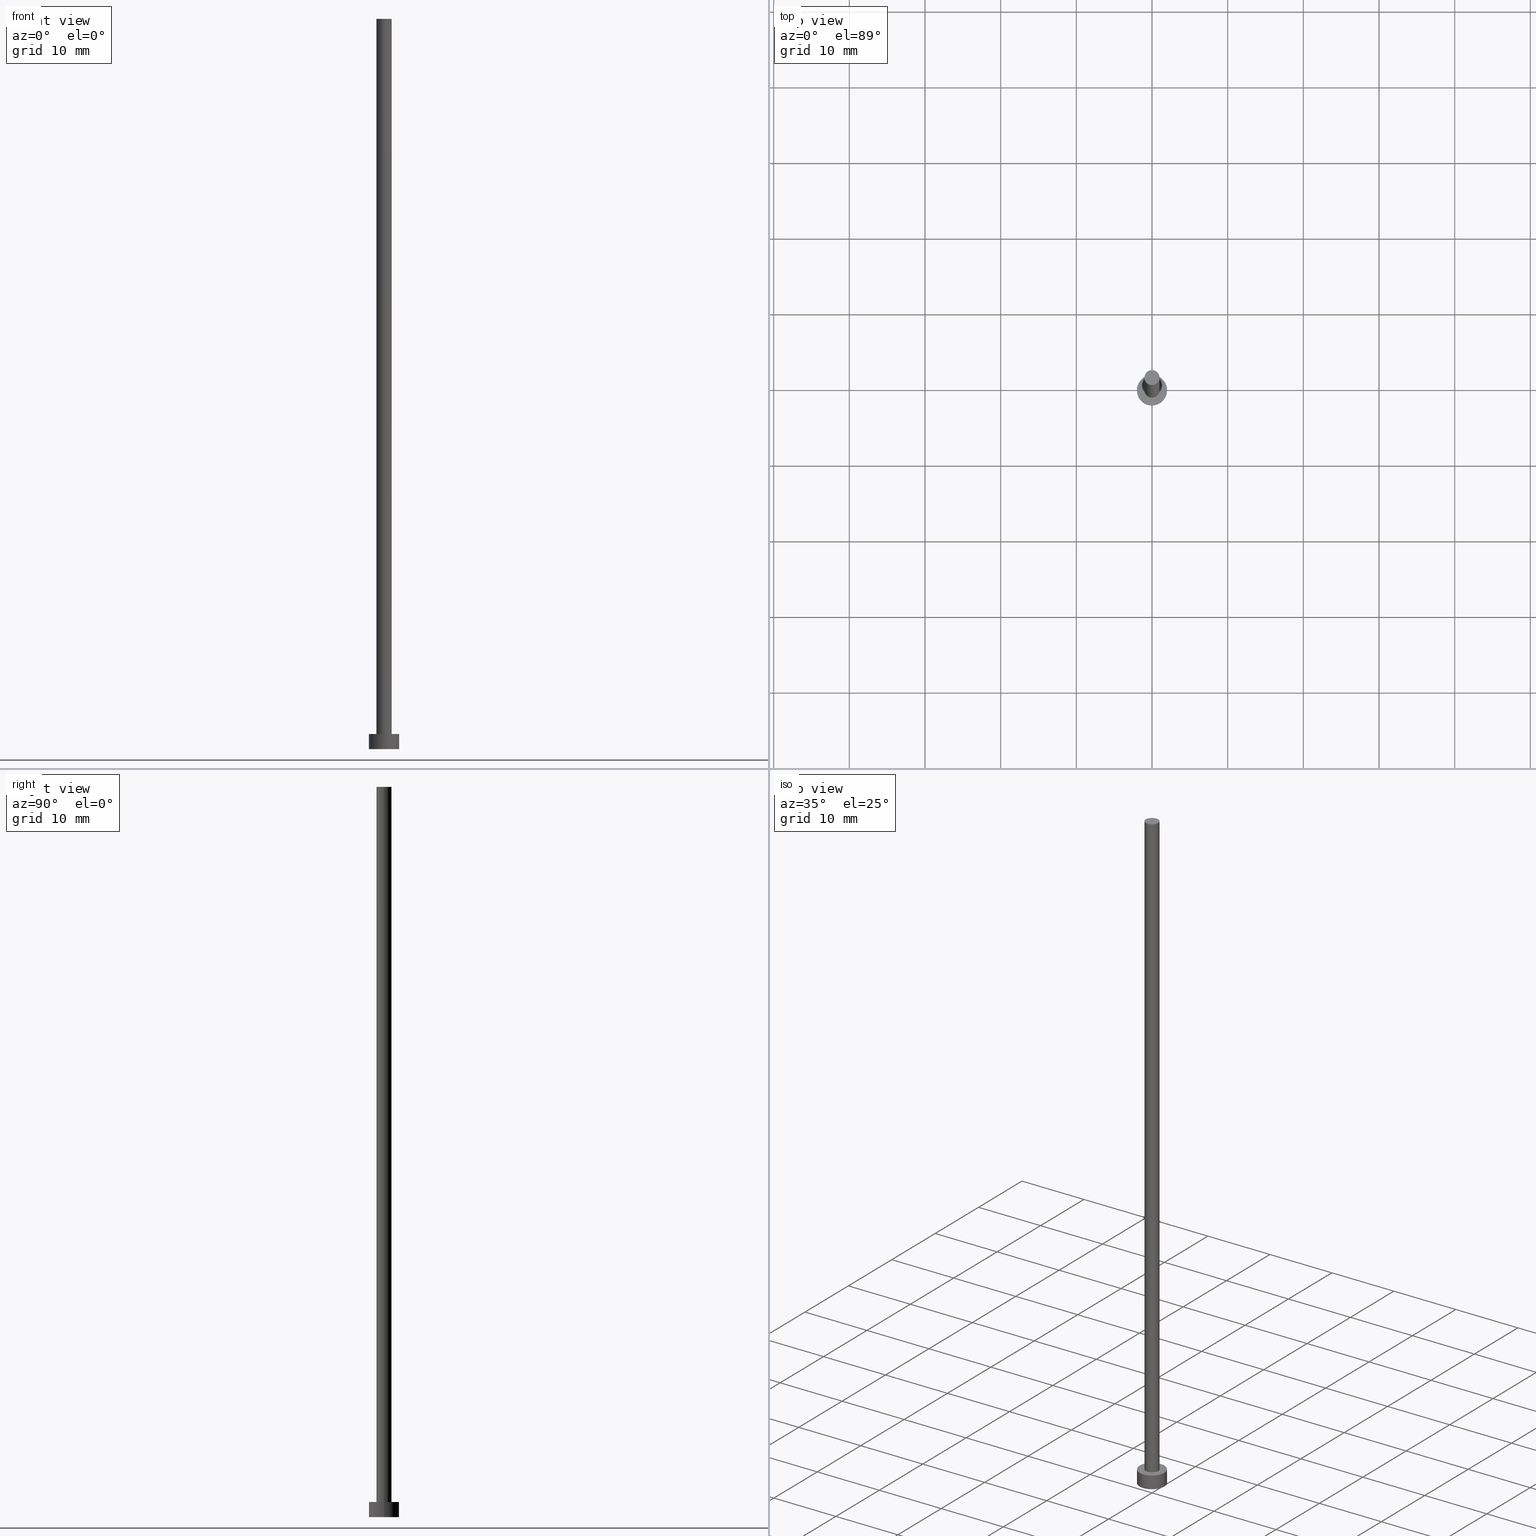
[diagram: canonical four-view strip — front | top / right | iso, engineering-drawing reading convention]
A machine part, canonical four-view strip (front | top / right | iso — engineering-drawing reading convention). The complete STEP part file that produces these views, byte-faithful:
ISO-10303-21;
HEADER;
FILE_DESCRIPTION (( 'STEP AP203' ),
    '1' );
FILE_NAME ('5e1b.STEP',
    '2023-03-14T13:50:37',
    ( '' ),
    ( '' ),
    'SwSTEP 2.0',
    'SolidWorks 2019',
    '' );
FILE_SCHEMA (( 'CONFIG_CONTROL_DESIGN' ));
ENDSEC;

DATA;
#1 = EDGE_CURVE ( 'NONE', #236, #228, #185, .T. ) ;
#2 = CARTESIAN_POINT ( 'NONE',  ( 0.000000000000000000, 0.000000000000000000, 2.000000000000000000 ) ) ;
#3 = CARTESIAN_POINT ( 'NONE',  ( -2.000000000000000000, 0.000000000000000000, 0.000000000000000000 ) ) ;
#4 = APPLICATION_PROTOCOL_DEFINITION ( 'international standard', 'config_control_design', 1994, #164 ) ;
#5 = CYLINDRICAL_SURFACE ( 'NONE', #24, 1.000000000000000000 ) ;
#6 = AXIS2_PLACEMENT_3D ( 'NONE', #84, #60, #44 ) ;
#7 = LOCAL_TIME ( 14, 50, 37.00000000000000000, #99 ) ;
#8 = COORDINATED_UNIVERSAL_TIME_OFFSET ( 1, 0, .AHEAD. ) ;
#9 = DIRECTION ( 'NONE',  ( 1.000000000000000000, 0.000000000000000000, -0.000000000000000000 ) ) ;
#10 = ORIENTED_EDGE ( 'NONE', *, *, #21, .F. ) ;
#11 = PLANE ( 'NONE',  #142 ) ;
#12 = CARTESIAN_POINT ( 'NONE',  ( -1.000000000000000000, 0.000000000000000000, 96.50000000000000000 ) ) ;
#13 = VERTEX_POINT ( 'NONE', #12 ) ;
#14 = PERSON_AND_ORGANIZATION ( #95, #36 ) ;
#15 = ORIENTED_EDGE ( 'NONE', *, *, #52, .T. ) ;
#16 = DIRECTION ( 'NONE',  ( -0.000000000000000000, -0.000000000000000000, -1.000000000000000000 ) ) ;
#17 = DIRECTION ( 'NONE',  ( 1.000000000000000000, 0.000000000000000000, 0.000000000000000000 ) ) ;
#18 = APPROVAL_DATE_TIME ( #241, #41 ) ;
#19 = CARTESIAN_POINT ( 'NONE',  ( 1.000000000000000000, 1.224646799147353207E-16, 2.000000000000000000 ) ) ;
#20 = PERSON_AND_ORGANIZATION ( #95, #36 ) ;
#21 = EDGE_CURVE ( 'NONE', #230, #40, #47, .T. ) ;
#22 = DIRECTION ( 'NONE',  ( 1.000000000000000000, 0.000000000000000000, 0.000000000000000000 ) ) ;
#23 = EDGE_LOOP ( 'NONE', ( #178, #120 ) ) ;
#24 = AXIS2_PLACEMENT_3D ( 'NONE', #246, #66, #152 ) ;
#25 = CARTESIAN_POINT ( 'NONE',  ( 0.000000000000000000, 0.000000000000000000, 96.50000000000000000 ) ) ;
#26 = DIRECTION ( 'NONE',  ( -0.000000000000000000, -0.000000000000000000, -1.000000000000000000 ) ) ;
#27 = CARTESIAN_POINT ( 'NONE',  ( 0.000000000000000000, 0.000000000000000000, 2.000000000000000000 ) ) ;
#28 = VECTOR ( 'NONE', #193, 1000.000000000000000 ) ;
#29 = EDGE_LOOP ( 'NONE', ( #216, #91 ) ) ;
#30 = EDGE_LOOP ( 'NONE', ( #51, #233, #140, #172 ) ) ;
#31 = EDGE_CURVE ( 'NONE', #73, #110, #75, .T. ) ;
#32 = SECURITY_CLASSIFICATION_LEVEL ( 'unclassified' ) ;
#33 = ORIENTED_EDGE ( 'NONE', *, *, #93, .T. ) ;
#34 = APPROVAL_STATUS ( 'not_yet_approved' ) ;
#35 = PERSON_AND_ORGANIZATION_ROLE ( 'classification_officer' ) ;
#36 = ORGANIZATION ( 'NEUR�EN�', 'NEUR�EN�', '' ) ;
#37 = CC_DESIGN_DATE_AND_TIME_ASSIGNMENT ( #139, #196, ( #102 ) ) ;
#38 = VECTOR ( 'NONE', #16, 1000.000000000000000 ) ;
#39 = CIRCLE ( 'NONE', #82, 1.000000000000000000 ) ;
#40 = VERTEX_POINT ( 'NONE', #19 ) ;
#41 = APPROVAL ( #85, 'NEUR�EN�' ) ;
#42 = DIRECTION ( 'NONE',  ( 0.000000000000000000, 0.000000000000000000, 1.000000000000000000 ) ) ;
#43 = CIRCLE ( 'NONE', #77, 2.000000000000000000 ) ;
#44 = DIRECTION ( 'NONE',  ( -1.000000000000000000, 0.000000000000000000, 0.000000000000000000 ) ) ;
#45 = DIRECTION ( 'NONE',  ( 1.000000000000000000, 0.000000000000000000, 0.000000000000000000 ) ) ;
#46 = CARTESIAN_POINT ( 'NONE',  ( 0.000000000000000000, 0.000000000000000000, 0.000000000000000000 ) ) ;
#47 = LINE ( 'NONE', #123, #38 ) ;
#48 = AXIS2_PLACEMENT_3D ( 'NONE', #122, #111, #118 ) ;
#49 = ORIENTED_EDGE ( 'NONE', *, *, #97, .T. ) ;
#50 = ADVANCED_FACE ( 'NONE', ( #128 ), #208, .T. ) ;
#51 = ORIENTED_EDGE ( 'NONE', *, *, #93, .F. ) ;
#52 = EDGE_CURVE ( 'NONE', #40, #54, #165, .T. ) ;
#53 = CALENDAR_DATE ( 2023, 14, 3 ) ;
#54 = VERTEX_POINT ( 'NONE', #80 ) ;
#55 = AXIS2_PLACEMENT_3D ( 'NONE', #2, #104, #226 ) ;
#56 = CC_DESIGN_APPROVAL ( #177, ( #160 ) ) ;
#57 =( LENGTH_UNIT ( ) NAMED_UNIT ( * ) SI_UNIT ( .MILLI., .METRE. ) );
#58 = DATE_TIME_ROLE ( 'creation_date' ) ;
#59 = LOCAL_TIME ( 14, 50, 37.00000000000000000, #67 ) ;
#60 = DIRECTION ( 'NONE',  ( -0.000000000000000000, -0.000000000000000000, -1.000000000000000000 ) ) ;
#61 = PERSON_AND_ORGANIZATION_ROLE ( 'creator' ) ;
#62 = DIRECTION ( 'NONE',  ( 0.000000000000000000, 0.000000000000000000, 1.000000000000000000 ) ) ;
#63 = EDGE_LOOP ( 'NONE', ( #147, #33 ) ) ;
#64 = CIRCLE ( 'NONE', #117, 2.000000000000000000 ) ;
#65 = DIRECTION ( 'NONE',  ( 1.000000000000000000, 0.000000000000000000, -0.000000000000000000 ) ) ;
#66 = DIRECTION ( 'NONE',  ( -0.000000000000000000, -0.000000000000000000, -1.000000000000000000 ) ) ;
#67 = COORDINATED_UNIVERSAL_TIME_OFFSET ( 1, 0, .AHEAD. ) ;
#68 = DIRECTION ( 'NONE',  ( -0.000000000000000000, -0.000000000000000000, -1.000000000000000000 ) ) ;
#69 = ORIENTED_EDGE ( 'NONE', *, *, #161, .T. ) ;
#70 = DIRECTION ( 'NONE',  ( 0.000000000000000000, 0.000000000000000000, 1.000000000000000000 ) ) ;
#71 = PERSON_AND_ORGANIZATION_ROLE ( 'creator' ) ;
#72 = PERSON_AND_ORGANIZATION ( #95, #36 ) ;
#73 = VERTEX_POINT ( 'NONE', #244 ) ;
#74 = EDGE_CURVE ( 'NONE', #13, #230, #199, .T. ) ;
#75 = LINE ( 'NONE', #200, #179 ) ;
#76 = DIRECTION ( 'NONE',  ( 0.000000000000000000, 0.000000000000000000, 1.000000000000000000 ) ) ;
#77 = AXIS2_PLACEMENT_3D ( 'NONE', #151, #100, #148 ) ;
#78 = PRODUCT_RELATED_PRODUCT_CATEGORY ( 'detail', '', ( #105 ) ) ;
#79 = CC_DESIGN_PERSON_AND_ORGANIZATION_ASSIGNMENT ( #115, #35, ( #102 ) ) ;
#80 = CARTESIAN_POINT ( 'NONE',  ( -1.000000000000000000, 0.000000000000000000, 2.000000000000000000 ) ) ;
#81 = CALENDAR_DATE ( 2023, 14, 3 ) ;
#82 = AXIS2_PLACEMENT_3D ( 'NONE', #221, #76, #17 ) ;
#83 = CARTESIAN_POINT ( 'NONE',  ( 0.000000000000000000, 0.000000000000000000, 96.50000000000000000 ) ) ;
#84 = CARTESIAN_POINT ( 'NONE',  ( 0.000000000000000000, 0.000000000000000000, 2.000000000000000000 ) ) ;
#85 = APPROVAL_STATUS ( 'not_yet_approved' ) ;
#86 = CARTESIAN_POINT ( 'NONE',  ( 0.000000000000000000, 0.000000000000000000, 0.000000000000000000 ) ) ;
#87 = FACE_OUTER_BOUND ( 'NONE', #30, .T. ) ;
#88 = APPROVAL_DATE_TIME ( #210, #214 ) ;
#89 = APPROVAL_PERSON_ORGANIZATION ( #72, #214, #194 ) ;
#90 = ORIENTED_EDGE ( 'NONE', *, *, #146, .F. ) ;
#91 = ORIENTED_EDGE ( 'NONE', *, *, #243, .T. ) ;
#92 = PRODUCT_DEFINITION_SHAPE ( 'NONE', 'NONE',  #201 ) ;
#93 = EDGE_CURVE ( 'NONE', #236, #73, #43, .T. ) ;
#94 = CIRCLE ( 'NONE', #249, 2.000000000000000000 ) ;
#95 = PERSON ( 'NEUR�EN�', 'NEUR�EN�', 'NEUR�EN�', ('NEUR�EN�'), ('NEUR�EN�'), ('NEUR�EN�') ) ;
#96 = EDGE_CURVE ( 'NONE', #73, #236, #170, .T. ) ;
#97 = EDGE_CURVE ( 'NONE', #54, #40, #220, .T. ) ;
#98 = APPROVAL_PERSON_ORGANIZATION ( #14, #41, #109 ) ;
#99 = COORDINATED_UNIVERSAL_TIME_OFFSET ( 1, 0, .AHEAD. ) ;
#100 = DIRECTION ( 'NONE',  ( 0.000000000000000000, 0.000000000000000000, 1.000000000000000000 ) ) ;
#101 = ORIENTED_EDGE ( 'NONE', *, *, #52, .F. ) ;
#102 = SECURITY_CLASSIFICATION ( '', '', #32 ) ;
#103 = EDGE_CURVE ( 'NONE', #228, #110, #64, .T. ) ;
#104 = DIRECTION ( 'NONE',  ( 0.000000000000000000, 0.000000000000000000, 1.000000000000000000 ) ) ;
#105 = PRODUCT ( '5e1b', '5e1b', '', ( #173 ) ) ;
#106 = DIRECTION ( 'NONE',  ( -1.000000000000000000, 0.000000000000000000, 0.000000000000000000 ) ) ;
#107 = CARTESIAN_POINT ( 'NONE',  ( 2.000000000000000000, 2.449293598294706414E-16, 2.000000000000000000 ) ) ;
#108 = CLOSED_SHELL ( 'NONE', ( #238, #237, #125, #222, #157, #141, #50 ) ) ;
#109 = APPROVAL_ROLE ( '' ) ;
#110 = VERTEX_POINT ( 'NONE', #3 ) ;
#111 = DIRECTION ( 'NONE',  ( 0.000000000000000000, 0.000000000000000000, 1.000000000000000000 ) ) ;
#112 = CARTESIAN_POINT ( 'NONE',  ( 0.000000000000000000, 0.000000000000000000, 2.000000000000000000 ) ) ;
#113 = CARTESIAN_POINT ( 'NONE',  ( 2.000000000000000000, 2.449293598294706414E-16, 2.000000000000000000 ) ) ;
#114 = PERSON_AND_ORGANIZATION ( #95, #36 ) ;
#115 = PERSON_AND_ORGANIZATION ( #95, #36 ) ;
#116 = ORIENTED_EDGE ( 'NONE', *, *, #243, .F. ) ;
#117 = AXIS2_PLACEMENT_3D ( 'NONE', #186, #224, #45 ) ;
#118 = DIRECTION ( 'NONE',  ( 1.000000000000000000, 0.000000000000000000, 0.000000000000000000 ) ) ;
#119 = PERSON_AND_ORGANIZATION_ROLE ( 'design_supplier' ) ;
#120 = ORIENTED_EDGE ( 'NONE', *, *, #103, .F. ) ;
#121 = UNCERTAINTY_MEASURE_WITH_UNIT (LENGTH_MEASURE( 1.000000000000000082E-05 ), #57, 'distance_accuracy_value', 'NONE');
#122 = CARTESIAN_POINT ( 'NONE',  ( 0.000000000000000000, 0.000000000000000000, 0.000000000000000000 ) ) ;
#123 = CARTESIAN_POINT ( 'NONE',  ( 1.000000000000000000, 1.224646799147353207E-16, 96.50000000000000000 ) ) ;
#124 =( NAMED_UNIT ( * ) SI_UNIT ( $, .STERADIAN. ) SOLID_ANGLE_UNIT ( ) );
#125 = ADVANCED_FACE ( 'NONE', ( #182 ), #255, .T. ) ;
#126 = DIRECTION ( 'NONE',  ( -0.000000000000000000, -0.000000000000000000, -1.000000000000000000 ) ) ;
#127 = ORIENTED_EDGE ( 'NONE', *, *, #1, .F. ) ;
#128 = FACE_OUTER_BOUND ( 'NONE', #29, .T. ) ;
#129 = AXIS2_PLACEMENT_3D ( 'NONE', #27, #68, #187 ) ;
#130 = CC_DESIGN_DATE_AND_TIME_ASSIGNMENT ( #239, #58, ( #201 ) ) ;
#131 = FACE_OUTER_BOUND ( 'NONE', #138, .T. ) ;
#132 = DIRECTION ( 'NONE',  ( -0.000000000000000000, -0.000000000000000000, -1.000000000000000000 ) ) ;
#133 = DIRECTION ( 'NONE',  ( 0.000000000000000000, 0.000000000000000000, 1.000000000000000000 ) ) ;
#134 = CALENDAR_DATE ( 2023, 14, 3 ) ;
#135 = LOCAL_TIME ( 14, 50, 37.00000000000000000, #181 ) ;
#136 = EDGE_LOOP ( 'NONE', ( #218, #101 ) ) ;
#137 = CYLINDRICAL_SURFACE ( 'NONE', #129, 2.000000000000000000 ) ;
#138 = EDGE_LOOP ( 'NONE', ( #10, #197, #176, #49 ) ) ;
#139 = DATE_AND_TIME ( #53, #180 ) ;
#140 = ORIENTED_EDGE ( 'NONE', *, *, #103, .T. ) ;
#141 = ADVANCED_FACE ( 'NONE', ( #131 ), #209, .T. ) ;
#142 = AXIS2_PLACEMENT_3D ( 'NONE', #86, #158, #227 ) ;
#143 =( NAMED_UNIT ( * ) PLANE_ANGLE_UNIT ( ) SI_UNIT ( $, .RADIAN. ) );
#144 = APPROVAL_ROLE ( '' ) ;
#145 = CARTESIAN_POINT ( 'NONE',  ( -1.000000000000000000, 0.000000000000000000, 96.50000000000000000 ) ) ;
#146 = EDGE_CURVE ( 'NONE', #13, #54, #205, .T. ) ;
#147 = ORIENTED_EDGE ( 'NONE', *, *, #96, .T. ) ;
#148 = DIRECTION ( 'NONE',  ( 1.000000000000000000, 0.000000000000000000, 0.000000000000000000 ) ) ;
#149 = AXIS2_PLACEMENT_3D ( 'NONE', #83, #62, #65 ) ;
#150 = CC_DESIGN_APPROVAL ( #41, ( #201 ) ) ;
#151 = CARTESIAN_POINT ( 'NONE',  ( 0.000000000000000000, 0.000000000000000000, 2.000000000000000000 ) ) ;
#152 = DIRECTION ( 'NONE',  ( -1.000000000000000000, 0.000000000000000000, 0.000000000000000000 ) ) ;
#153 = ORIENTED_EDGE ( 'NONE', *, *, #31, .T. ) ;
#154 = APPLICATION_CONTEXT ( 'configuration controlled 3d designs of mechanical parts and assemblies' ) ;
#155 = CARTESIAN_POINT ( 'NONE',  ( 2.000000000000000000, 2.449293598294706414E-16, 0.000000000000000000 ) ) ;
#156 = PERSON_AND_ORGANIZATION ( #95, #36 ) ;
#157 = ADVANCED_FACE ( 'NONE', ( #166 ), #11, .F. ) ;
#158 = DIRECTION ( 'NONE',  ( 0.000000000000000000, 0.000000000000000000, 1.000000000000000000 ) ) ;
#159 = ORIENTED_EDGE ( 'NONE', *, *, #96, .F. ) ;
#160 = PRODUCT_DEFINITION_FORMATION_WITH_SPECIFIED_SOURCE ( 'LIBOVOLN�', '', #105, .NOT_KNOWN. ) ;
#161 = EDGE_CURVE ( 'NONE', #110, #228, #94, .T. ) ;
#162 = CC_DESIGN_PERSON_AND_ORGANIZATION_ASSIGNMENT ( #215, #119, ( #160 ) ) ;
#163 = APPROVAL_STATUS ( 'not_yet_approved' ) ;
#164 = APPLICATION_CONTEXT ( 'configuration controlled 3d designs of mechanical parts and assemblies' ) ;
#165 = CIRCLE ( 'NONE', #207, 1.000000000000000000 ) ;
#166 = FACE_OUTER_BOUND ( 'NONE', #23, .T. ) ;
#167 = PERSON_AND_ORGANIZATION ( #95, #36 ) ;
#168 = DIRECTION ( 'NONE',  ( 1.000000000000000000, 0.000000000000000000, 0.000000000000000000 ) ) ;
#169 = DIRECTION ( 'NONE',  ( 0.000000000000000000, 0.000000000000000000, 1.000000000000000000 ) ) ;
#170 = CIRCLE ( 'NONE', #55, 2.000000000000000000 ) ;
#171 = PLANE ( 'NONE',  #184 ) ;
#172 = ORIENTED_EDGE ( 'NONE', *, *, #31, .F. ) ;
#173 = MECHANICAL_CONTEXT ( 'NONE', #154, 'mechanical' ) ;
#174 = FACE_OUTER_BOUND ( 'NONE', #251, .T. ) ;
#175 = APPROVAL_PERSON_ORGANIZATION ( #167, #177, #144 ) ;
#176 = ORIENTED_EDGE ( 'NONE', *, *, #146, .T. ) ;
#177 = APPROVAL ( #163, 'NEUR�EN�' ) ;
#178 = ORIENTED_EDGE ( 'NONE', *, *, #161, .F. ) ;
#179 = VECTOR ( 'NONE', #126, 1000.000000000000000 ) ;
#180 = LOCAL_TIME ( 14, 50, 37.00000000000000000, #217 ) ;
#181 = COORDINATED_UNIVERSAL_TIME_OFFSET ( 1, 0, .AHEAD. ) ;
#182 = FACE_OUTER_BOUND ( 'NONE', #250, .T. ) ;
#183 = AXIS2_PLACEMENT_3D ( 'NONE', #25, #169, #168 ) ;
#184 = AXIS2_PLACEMENT_3D ( 'NONE', #112, #70, #9 ) ;
#185 = LINE ( 'NONE', #113, #28 ) ;
#186 = CARTESIAN_POINT ( 'NONE',  ( 0.000000000000000000, 0.000000000000000000, 0.000000000000000000 ) ) ;
#187 = DIRECTION ( 'NONE',  ( -1.000000000000000000, 0.000000000000000000, 0.000000000000000000 ) ) ;
#188 = CARTESIAN_POINT ( 'NONE',  ( 0.000000000000000000, 0.000000000000000000, 96.50000000000000000 ) ) ;
#189 = CC_DESIGN_APPROVAL ( #214, ( #102 ) ) ;
#190 = DIRECTION ( 'NONE',  ( 1.000000000000000000, 0.000000000000000000, 0.000000000000000000 ) ) ;
#191 = DESIGN_CONTEXT ( 'detailed design', #164, 'design' ) ;
#192 = APPLICATION_PROTOCOL_DEFINITION ( 'international standard', 'config_control_design', 1994, #154 ) ;
#193 = DIRECTION ( 'NONE',  ( -0.000000000000000000, -0.000000000000000000, -1.000000000000000000 ) ) ;
#194 = APPROVAL_ROLE ( '' ) ;
#195 = AXIS2_PLACEMENT_3D ( 'NONE', #223, #42, #240 ) ;
#196 = DATE_TIME_ROLE ( 'classification_date' ) ;
#197 = ORIENTED_EDGE ( 'NONE', *, *, #74, .F. ) ;
#198 = LOCAL_TIME ( 14, 50, 37.00000000000000000, #8 ) ;
#199 = CIRCLE ( 'NONE', #183, 1.000000000000000000 ) ;
#200 = CARTESIAN_POINT ( 'NONE',  ( -2.000000000000000000, 0.000000000000000000, 2.000000000000000000 ) ) ;
#201 = PRODUCT_DEFINITION ( 'NEZN�M�', '', #160, #191 ) ;
#202 = ADVANCED_BREP_SHAPE_REPRESENTATION ( '5e1b', ( #242, #48 ), #219 ) ;
#203 = VECTOR ( 'NONE', #132, 1000.000000000000000 ) ;
#204 = CALENDAR_DATE ( 2023, 14, 3 ) ;
#205 = LINE ( 'NONE', #145, #203 ) ;
#206 = DIRECTION ( 'NONE',  ( 0.000000000000000000, 0.000000000000000000, 1.000000000000000000 ) ) ;
#207 = AXIS2_PLACEMENT_3D ( 'NONE', #245, #206, #22 ) ;
#208 = PLANE ( 'NONE',  #149 ) ;
#209 = CYLINDRICAL_SURFACE ( 'NONE', #212, 1.000000000000000000 ) ;
#210 = DATE_AND_TIME ( #134, #59 ) ;
#211 = FACE_BOUND ( 'NONE', #136, .T. ) ;
#212 = AXIS2_PLACEMENT_3D ( 'NONE', #188, #26, #106 ) ;
#213 = ORIENTED_EDGE ( 'NONE', *, *, #21, .T. ) ;
#214 = APPROVAL ( #34, 'NEUR�EN�' ) ;
#215 = PERSON_AND_ORGANIZATION ( #95, #36 ) ;
#216 = ORIENTED_EDGE ( 'NONE', *, *, #74, .T. ) ;
#217 = COORDINATED_UNIVERSAL_TIME_OFFSET ( 1, 0, .AHEAD. ) ;
#218 = ORIENTED_EDGE ( 'NONE', *, *, #97, .F. ) ;
#219 =( GEOMETRIC_REPRESENTATION_CONTEXT ( 3 ) GLOBAL_UNCERTAINTY_ASSIGNED_CONTEXT ( ( #121 ) ) GLOBAL_UNIT_ASSIGNED_CONTEXT ( ( #57, #143, #124 ) ) REPRESENTATION_CONTEXT ( 'NONE', 'WORKASPACE' ) );
#220 = CIRCLE ( 'NONE', #195, 1.000000000000000000 ) ;
#221 = CARTESIAN_POINT ( 'NONE',  ( 0.000000000000000000, 0.000000000000000000, 96.50000000000000000 ) ) ;
#222 = ADVANCED_FACE ( 'NONE', ( #211, #229 ), #171, .T. ) ;
#223 = CARTESIAN_POINT ( 'NONE',  ( 0.000000000000000000, 0.000000000000000000, 2.000000000000000000 ) ) ;
#224 = DIRECTION ( 'NONE',  ( 0.000000000000000000, 0.000000000000000000, 1.000000000000000000 ) ) ;
#225 = CC_DESIGN_PERSON_AND_ORGANIZATION_ASSIGNMENT ( #156, #71, ( #160 ) ) ;
#226 = DIRECTION ( 'NONE',  ( 1.000000000000000000, 0.000000000000000000, 0.000000000000000000 ) ) ;
#227 = DIRECTION ( 'NONE',  ( 1.000000000000000000, 0.000000000000000000, -0.000000000000000000 ) ) ;
#228 = VERTEX_POINT ( 'NONE', #155 ) ;
#229 = FACE_OUTER_BOUND ( 'NONE', #63, .T. ) ;
#230 = VERTEX_POINT ( 'NONE', #232 ) ;
#231 = CC_DESIGN_PERSON_AND_ORGANIZATION_ASSIGNMENT ( #20, #61, ( #201 ) ) ;
#232 = CARTESIAN_POINT ( 'NONE',  ( 1.000000000000000000, 1.224646799147353207E-16, 96.50000000000000000 ) ) ;
#233 = ORIENTED_EDGE ( 'NONE', *, *, #1, .T. ) ;
#234 = PERSON_AND_ORGANIZATION_ROLE ( 'design_owner' ) ;
#235 = APPROVAL_DATE_TIME ( #248, #177 ) ;
#236 = VERTEX_POINT ( 'NONE', #107 ) ;
#237 = ADVANCED_FACE ( 'NONE', ( #87 ), #137, .T. ) ;
#238 = ADVANCED_FACE ( 'NONE', ( #174 ), #5, .T. ) ;
#239 = DATE_AND_TIME ( #254, #135 ) ;
#240 = DIRECTION ( 'NONE',  ( 1.000000000000000000, 0.000000000000000000, 0.000000000000000000 ) ) ;
#241 = DATE_AND_TIME ( #204, #198 ) ;
#242 = MANIFOLD_SOLID_BREP ( 'P�idat vysunut�m3', #108 ) ;
#243 = EDGE_CURVE ( 'NONE', #230, #13, #39, .T. ) ;
#244 = CARTESIAN_POINT ( 'NONE',  ( -2.000000000000000000, 0.000000000000000000, 2.000000000000000000 ) ) ;
#245 = CARTESIAN_POINT ( 'NONE',  ( 0.000000000000000000, 0.000000000000000000, 2.000000000000000000 ) ) ;
#246 = CARTESIAN_POINT ( 'NONE',  ( 0.000000000000000000, 0.000000000000000000, 96.50000000000000000 ) ) ;
#247 = SHAPE_DEFINITION_REPRESENTATION ( #92, #202 ) ;
#248 = DATE_AND_TIME ( #81, #7 ) ;
#249 = AXIS2_PLACEMENT_3D ( 'NONE', #46, #133, #190 ) ;
#250 = EDGE_LOOP ( 'NONE', ( #127, #159, #153, #69 ) ) ;
#251 = EDGE_LOOP ( 'NONE', ( #116, #213, #15, #90 ) ) ;
#252 = CC_DESIGN_PERSON_AND_ORGANIZATION_ASSIGNMENT ( #114, #234, ( #105 ) ) ;
#253 = CC_DESIGN_SECURITY_CLASSIFICATION ( #102, ( #160 ) ) ;
#254 = CALENDAR_DATE ( 2023, 14, 3 ) ;
#255 = CYLINDRICAL_SURFACE ( 'NONE', #6, 2.000000000000000000 ) ;
ENDSEC;
END-ISO-10303-21;
